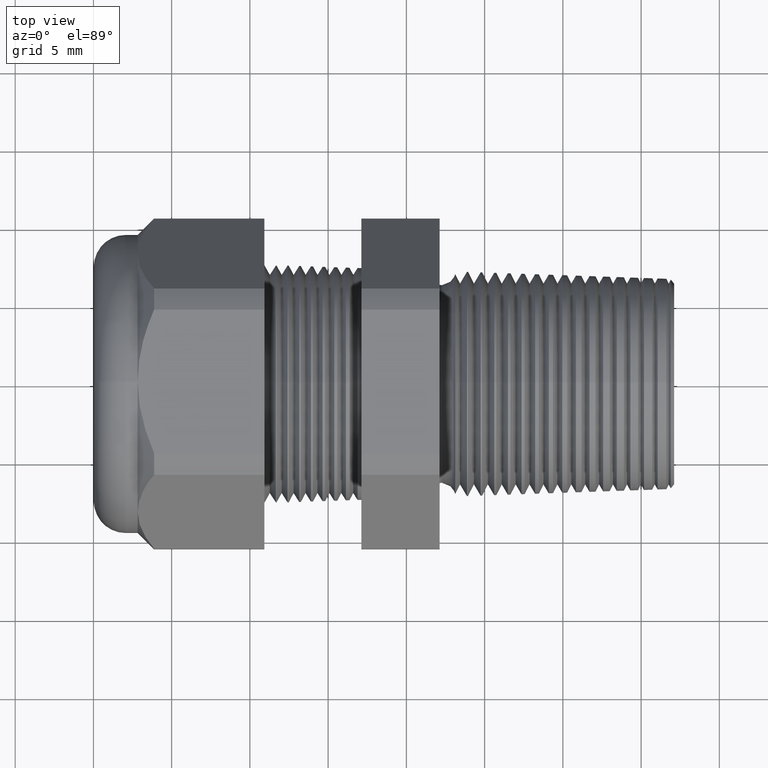
[diagram: clean part render]
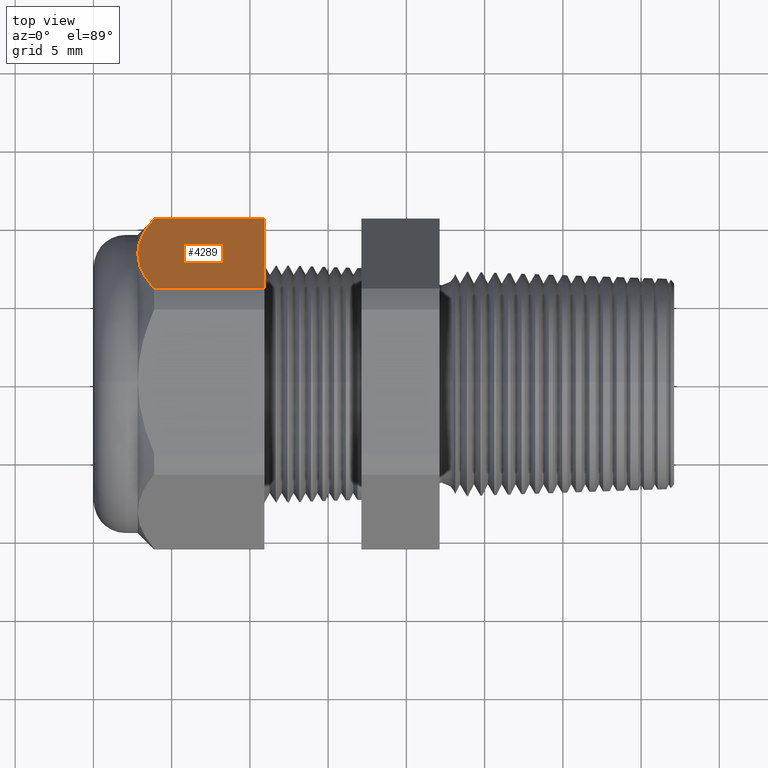
[diagram: same view with one face highlighted and labeled with its STEP entity id]
A machine part, top view. The second image highlights one B-rep face of the part: STEP entity #4289.
In plain terms, the highlighted planar face has unit normal (0, 0.866, 0.5).
Its self-contained STEP definition (entity closure, byte-faithful):
#1887 = DIRECTION ( 'NONE',  ( 0.0000000000000000000, -0.4999999999999998900, 0.8660254037844386000 ) ) ;
#1888 = VECTOR ( 'NONE', #1887, 39.37007874015748100 ) ;
#1889 = CARTESIAN_POINT ( 'NONE',  ( -0.7508661417322833900, 0.3997595264191646800, 0.05759618943233429900 ) ) ;
#1890 = LINE ( 'NONE', #1889, #1888 ) ;
#1891 = CARTESIAN_POINT ( 'NONE',  ( -0.7508661417322833900, 0.2344281053908206000, 0.3439586107409877100 ) ) ;
#1892 = DIRECTION ( 'NONE',  ( -1.000000000000000000, 0.0000000000000000000, 0.0000000000000000000 ) ) ;
#1893 = VECTOR ( 'NONE', #1892, 39.37007874015748100 ) ;
#1894 = CARTESIAN_POINT ( 'NONE',  ( 0.2800000000000000300, 0.2344281053908206000, 0.3439586107409877100 ) ) ;
#1895 = LINE ( 'NONE', #1894, #1893 ) ;
#1896 = CARTESIAN_POINT ( 'NONE',  ( -1.028513779527559200, 0.2344281053908206000, 0.3439586107409877100 ) ) ;
#1897 = CARTESIAN_POINT ( 'NONE',  ( -1.041003202145915500, 0.2488160174420977500, 0.3190380160533431400 ) ) ;
#1898 = CARTESIAN_POINT ( 'NONE',  ( -1.051459219999149700, 0.2636869420682236800, 0.2932808190453658500 ) ) ;
#1899 = CARTESIAN_POINT ( 'NONE',  ( -1.065817769005222600, 0.2938118100972369500, 0.2411030170478075100 ) ) ;
#1900 = CARTESIAN_POINT ( 'NONE',  ( -1.069763779527558500, 0.3091297520026594100, 0.2145715634002269300 ) ) ;
#1901 = CARTESIAN_POINT ( 'NONE',  ( -1.069763779527559200, 0.3247595264191646700, 0.1875000000000000800 ) ) ;
#1902 = CARTESIAN_POINT ( 'NONE',  ( -1.028513779527559200, 0.2344281053908206000, 0.3439586107409877100 ) ) ;
#1903 = B_SPLINE_CURVE_WITH_KNOTS ( 'NONE', 3,
 ( #1901, #1900, #1899, #1898, #1897, #1896 ),
 .UNSPECIFIED., .F., .F.,
 ( 4, 2, 4 ),
 ( 0.004709976344604655800, 0.007063225540252125400, 0.009416474735899594100 ),
 .UNSPECIFIED. ) ;
#1911 = FACE_OUTER_BOUND ( 'NONE', #4290, .T. ) ;
#1917 = CARTESIAN_POINT ( 'NONE',  ( -0.7508661417322833900, 0.4150909474475088000, 0.03104138925901233200 ) ) ;
#1918 = DIRECTION ( 'NONE',  ( -1.000000000000000000, 0.0000000000000000000, 0.0000000000000000000 ) ) ;
#1919 = VECTOR ( 'NONE', #1918, 39.37007874015748100 ) ;
#1920 = CARTESIAN_POINT ( 'NONE',  ( 0.2800000000000000300, 0.4150909474475088000, 0.03104138925901233200 ) ) ;
#1921 = LINE ( 'NONE', #1920, #1919 ) ;
#1922 = CARTESIAN_POINT ( 'NONE',  ( -1.028513779527559000, 0.4150909474475088000, 0.03104138925901235600 ) ) ;
#1957 = CARTESIAN_POINT ( 'NONE',  ( -1.069763779527559200, 0.3247595264191646700, 0.1875000000000000800 ) ) ;
#1958 = CARTESIAN_POINT ( 'NONE',  ( -1.069763779527559000, 0.3325797762507457500, 0.1739549299638196200 ) ) ;
#1959 = CARTESIAN_POINT ( 'NONE',  ( -1.068759730589041100, 0.3404835130999904200, 0.1602652561712734600 ) ) ;
#1960 = CARTESIAN_POINT ( 'NONE',  ( -1.064926254644834100, 0.3559303281390046600, 0.1335105877085818500 ) ) ;
#1961 = CARTESIAN_POINT ( 'NONE',  ( -1.062104445229485000, 0.3635409529853228000, 0.1203285987974130200 ) ) ;
#1962 = CARTESIAN_POINT ( 'NONE',  ( -1.051298346633053900, 0.3860811521420283700, 0.08128782864527739300 ) ) ;
#1963 = CARTESIAN_POINT ( 'NONE',  ( -1.040987746498826200, 0.4007208404219564400, 0.05593114473747128100 ) ) ;
#1964 = CARTESIAN_POINT ( 'NONE',  ( -1.028513779527559000, 0.4150909474475088000, 0.03104138925901235600 ) ) ;
#1966 = B_SPLINE_CURVE_WITH_KNOTS ( 'NONE', 3,
 ( #1964, #1963, #1962, #1961, #1960, #1959, #1958, #1957 ),
 .UNSPECIFIED., .F., .F.,
 ( 4, 2, 2, 4 ),
 ( 2.483253706006155900E-007, 0.002355112334987628300, 0.003532544339796142100, 0.004709976344604655800 ),
 .UNSPECIFIED. ) ;
#1967 = DIRECTION ( 'NONE',  ( 0.0000000000000000000, -0.4999999999999998900, 0.8660254037844386000 ) ) ;
#1968 = DIRECTION ( 'NONE',  ( 0.0000000000000000000, 0.8660254037844387100, 0.4999999999999999400 ) ) ;
#1969 = CARTESIAN_POINT ( 'NONE',  ( 0.2800000000000000300, 0.2344281053908206000, 0.3439586107409877100 ) ) ;
#1970 = AXIS2_PLACEMENT_3D ( 'NONE', #1969, #1968, #1967 ) ;
#1971 = PLANE ( 'NONE',  #1970 ) ;
#2371 = CARTESIAN_POINT ( 'NONE',  ( -1.069763779527559200, 0.3247595264191646700, 0.1875000000000000800 ) ) ;
#4264 = ORIENTED_EDGE ( 'NONE', *, *, #4265, .T. ) ;
#4265 = EDGE_CURVE ( 'NONE', #4480, #4266, #1903, .T. ) ;
#4266 = VERTEX_POINT ( 'NONE', #1902 ) ;
#4267 = ORIENTED_EDGE ( 'NONE', *, *, #4268, .F. ) ;
#4268 = EDGE_CURVE ( 'NONE', #4269, #4266, #1895, .T. ) ;
#4269 = VERTEX_POINT ( 'NONE', #1891 ) ;
#4270 = ORIENTED_EDGE ( 'NONE', *, *, #4271, .F. ) ;
#4271 = EDGE_CURVE ( 'NONE', #4286, #4269, #1890, .T. ) ;
#4283 = VERTEX_POINT ( 'NONE', #1922 ) ;
#4285 = EDGE_CURVE ( 'NONE', #4286, #4283, #1921, .T. ) ;
#4286 = VERTEX_POINT ( 'NONE', #1917 ) ;
#4289 = ADVANCED_FACE ( 'NONE', ( #1911 ), #1971, .T. ) ;
#4290 = EDGE_LOOP ( 'NONE', ( #4291, #4292, #4264, #4267, #4270 ) ) ;
#4291 = ORIENTED_EDGE ( 'NONE', *, *, #4285, .T. ) ;
#4292 = ORIENTED_EDGE ( 'NONE', *, *, #4293, .T. ) ;
#4293 = EDGE_CURVE ( 'NONE', #4283, #4480, #1966, .T. ) ;
#4480 = VERTEX_POINT ( 'NONE', #2371 ) ;